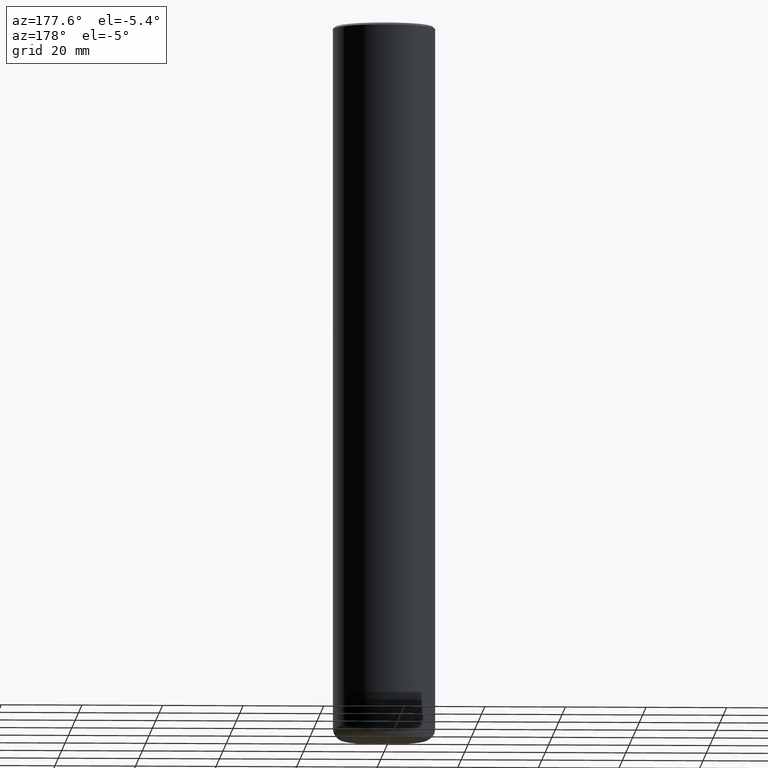
[diagram: clean part render]
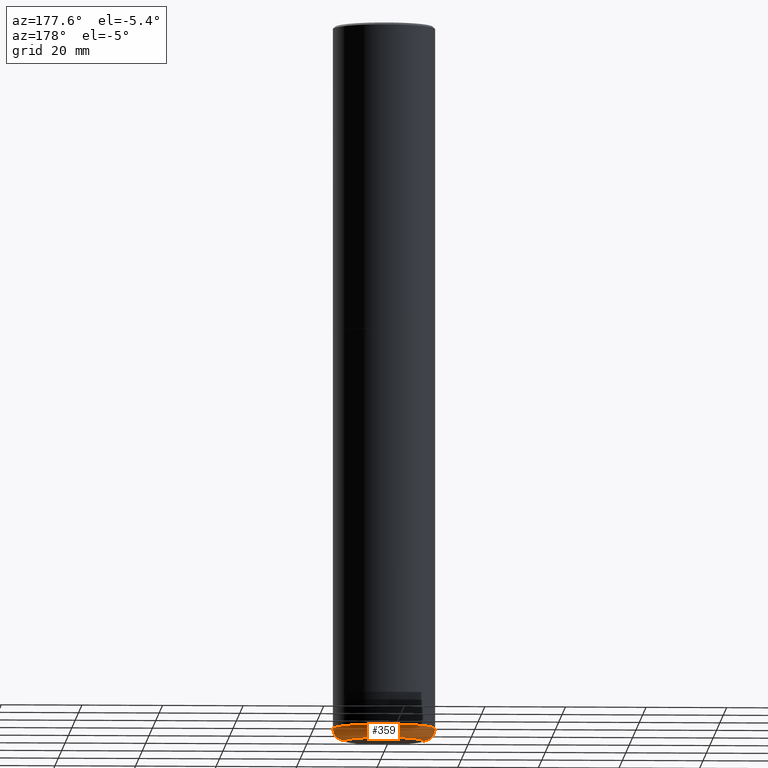
[diagram: same view with one face highlighted and labeled with its STEP entity id]
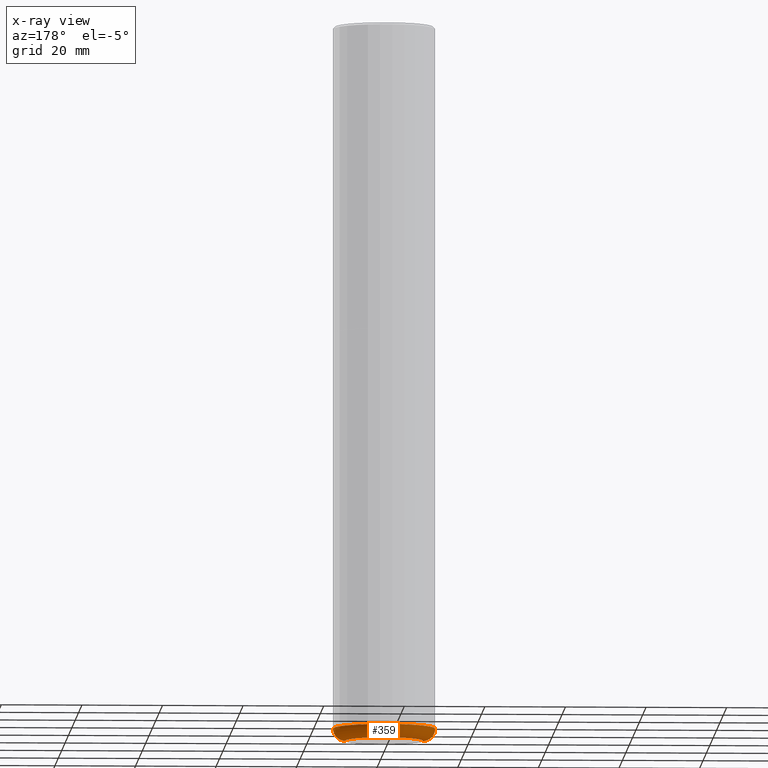
[diagram: x-ray of the same camera — body ghosted, the highlighted face saturated]
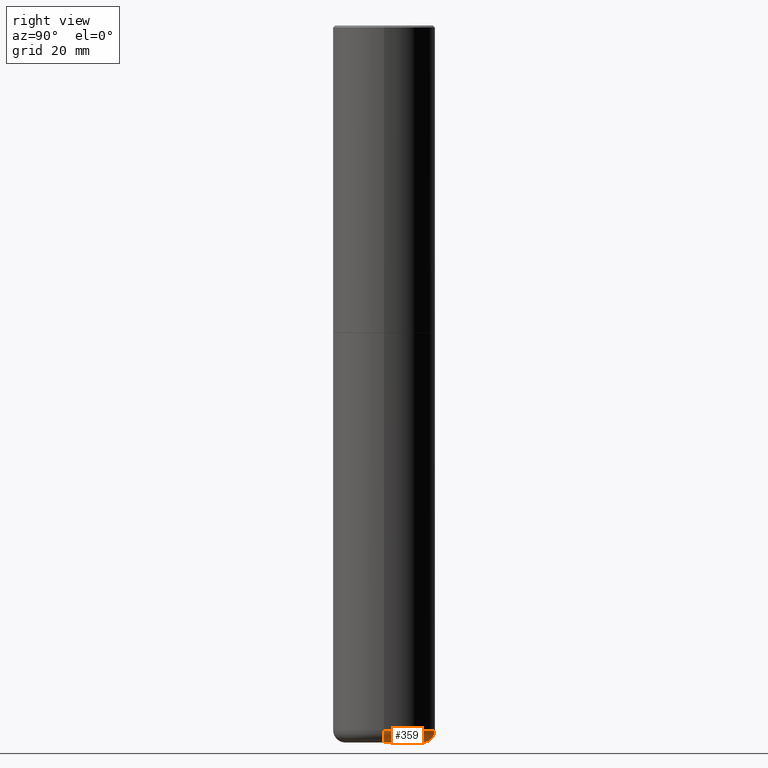
[diagram: same view with one face highlighted and labeled with its STEP entity id]
A machine part, auxiliary view. The second image highlights one B-rep face of the part: STEP entity #359.
The next image is the same camera in x-ray: the body ghosted, the highlighted face saturated — about 0% of this face is hidden behind the body in this view.
A second angle (right view) of the same face is appended — the face is thin or edge-on in the first view.
In plain terms, the highlighted toroidal blend (fillet) surface has major radius 9.652 mm and minor (blend) radius 3.048 mm.
Its self-contained STEP definition (entity closure, byte-faithful):
#19 = DIRECTION ( 'NONE',  ( -2.445468806185136597E-29, 3.491481338843145583E-15, 1.000000000000000000 ) ) ;
#22 = CIRCLE ( 'NONE', #284, 0.5000000000000001110 ) ;
#25 = DIRECTION ( 'NONE',  ( 1.000000000000000000, -6.982962677686273021E-15, 0.000000000000000000 ) ) ;
#51 = EDGE_CURVE ( 'NONE', #269, #335, #289, .T. ) ;
#63 = DIRECTION ( 'NONE',  ( -2.445468806185136597E-29, 3.491481338843145583E-15, 1.000000000000000000 ) ) ;
#84 = CARTESIAN_POINT ( 'NONE',  ( -0.3799999999999999489, -2.132132921535246210E-14, -6.879999999999999893 ) ) ;
#105 = ORIENTED_EDGE ( 'NONE', *, *, #51, .T. ) ;
#112 = CARTESIAN_POINT ( 'NONE',  ( 1.682482538655373988E-28, -2.402139161124084205E-14, -6.879999999999999893 ) ) ;
#119 = DIRECTION ( 'NONE',  ( 1.000000000000000000, -6.982962677686264344E-15, 4.883557194083112340E-29 ) ) ;
#127 = CIRCLE ( 'NONE', #376, 0.1199999999999999539 ) ;
#140 = TOROIDAL_SURFACE ( 'NONE', #240, 0.3799999999999999489, 0.1199999999999999539 ) ;
#171 = CARTESIAN_POINT ( 'NONE',  ( 0.3799999999999999489, -2.667491742876162529E-14, -6.879999999999999893 ) ) ;
#173 = ORIENTED_EDGE ( 'NONE', *, *, #259, .T. ) ;
#174 = CARTESIAN_POINT ( 'NONE',  ( -0.5000000000000000000, -2.046867793244033797E-14, -6.879999999999999893 ) ) ;
#195 = CARTESIAN_POINT ( 'NONE',  ( 1.682482538655373988E-28, -2.402139161124084205E-14, -6.879999999999999893 ) ) ;
#205 = VERTEX_POINT ( 'NONE', #174 ) ;
#217 = ORIENTED_EDGE ( 'NONE', *, *, #322, .F. ) ;
#225 = CARTESIAN_POINT ( 'NONE',  ( 0.3799999999999999489, -2.709389518942280193E-14, -7.000000000000000000 ) ) ;
#240 = AXIS2_PLACEMENT_3D ( 'NONE', #195, #63, #119 ) ;
#247 = CARTESIAN_POINT ( 'NONE',  ( 1.711828164329595394E-28, -2.444036937190201868E-14, -7.000000000000000000 ) ) ;
#259 = EDGE_CURVE ( 'NONE', #335, #205, #265, .T. ) ;
#265 = CIRCLE ( 'NONE', #411, 0.1199999999999999539 ) ;
#269 = VERTEX_POINT ( 'NONE', #225 ) ;
#284 = AXIS2_PLACEMENT_3D ( 'NONE', #112, #19, #344 ) ;
#289 = CIRCLE ( 'NONE', #306, 0.3799999999999999489 ) ;
#306 = AXIS2_PLACEMENT_3D ( 'NONE', #247, #375, #25 ) ;
#313 = DIRECTION ( 'NONE',  ( 7.105427357601001859E-15, 1.000000000000000000, -3.491481338843145583E-15 ) ) ;
#316 = DIRECTION ( 'NONE',  ( -1.000000000000000000, 7.105427357600993970E-15, 0.000000000000000000 ) ) ;
#318 = DIRECTION ( 'NONE',  ( -6.982962677686266711E-15, -1.000000000000000000, 3.491481338843145583E-15 ) ) ;
#322 = EDGE_CURVE ( 'NONE', #356, #205, #22, .T. ) ;
#335 = VERTEX_POINT ( 'NONE', #406 ) ;
#344 = DIRECTION ( 'NONE',  ( 1.000000000000000000, -6.982962677686269077E-15, 0.000000000000000000 ) ) ;
#356 = VERTEX_POINT ( 'NONE', #407 ) ;
#359 = ADVANCED_FACE ( 'NONE', ( #373 ), #140, .T. ) ;
#363 = EDGE_LOOP ( 'NONE', ( #105, #173, #217, #372 ) ) ;
#372 = ORIENTED_EDGE ( 'NONE', *, *, #413, .F. ) ;
#373 = FACE_OUTER_BOUND ( 'NONE', #363, .T. ) ;
#375 = DIRECTION ( 'NONE',  ( -2.445468806185136597E-29, 3.491481338843145583E-15, 1.000000000000000000 ) ) ;
#376 = AXIS2_PLACEMENT_3D ( 'NONE', #171, #318, #417 ) ;
#406 = CARTESIAN_POINT ( 'NONE',  ( -0.3799999999999999489, -2.110449245422699151E-14, -7.000000000000000000 ) ) ;
#407 = CARTESIAN_POINT ( 'NONE',  ( 0.5000000000000000000, -2.751287295008397541E-14, -6.879999999999999893 ) ) ;
#411 = AXIS2_PLACEMENT_3D ( 'NONE', #84, #313, #316 ) ;
#413 = EDGE_CURVE ( 'NONE', #269, #356, #127, .T. ) ;
#417 = DIRECTION ( 'NONE',  ( 1.000000000000000000, -6.982962677686270655E-15, 0.000000000000000000 ) ) ;